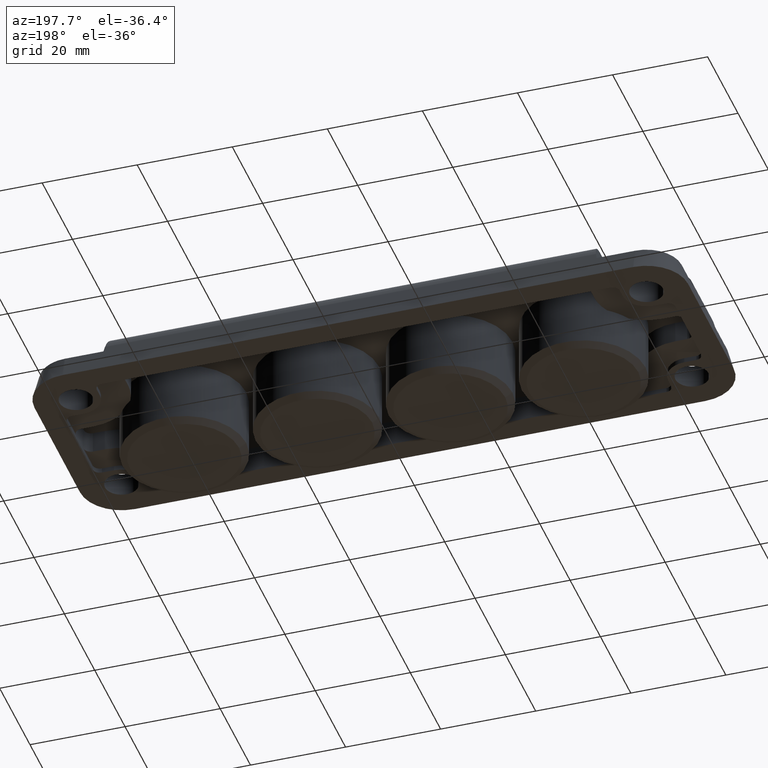
[diagram: clean part render]
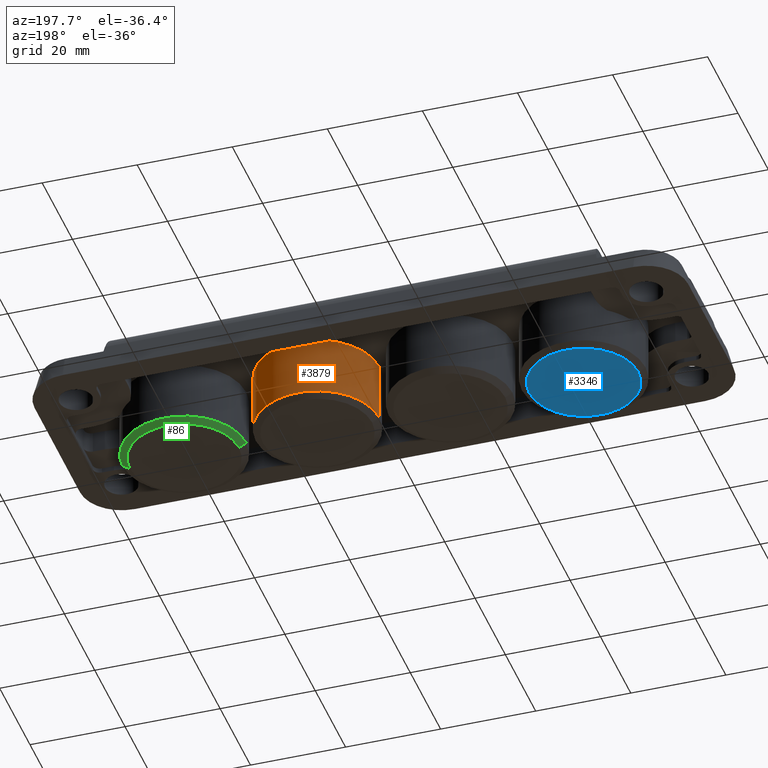
[diagram: same view with three faces highlighted in distinct colors, each labeled with its STEP entity id]
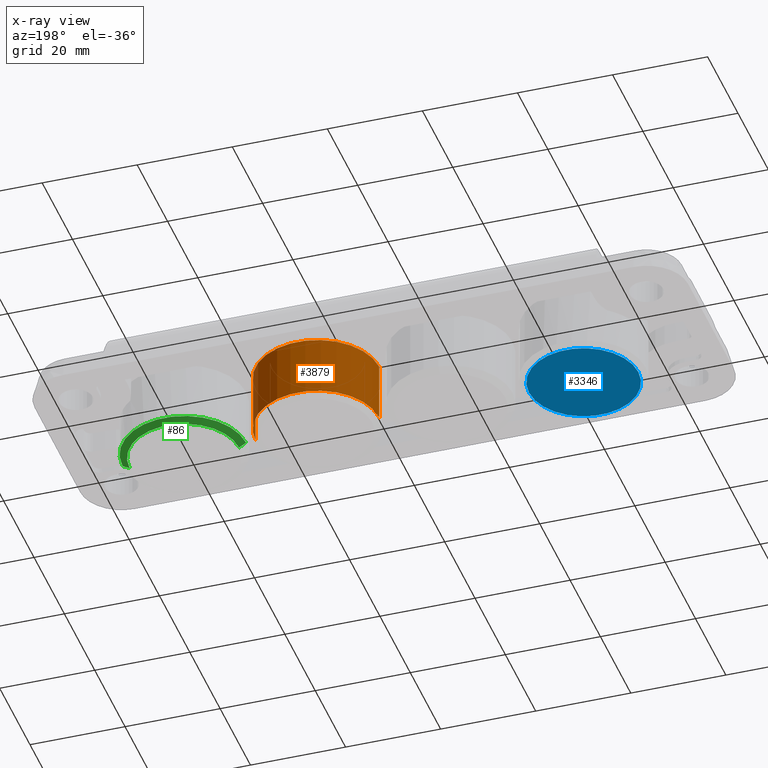
[diagram: x-ray of the same camera — body ghosted, the three highlighted faces saturated]
A machine part, auxiliary view with three faces highlighted in distinct colors.
The next image is the same camera in x-ray (body ghosted, the three faces saturated) — at least one of them is partly hidden behind the body in this view.
Their STEP definitions:

[orange] entity #3879 — the highlighted cylindrical surface (partial cylindrical patch) has radius 13 mm, axis along (0, 0, 1).
#29 = VECTOR ( 'NONE', #4028, 1000.000000000000000 ) ;
#80 = CIRCLE ( 'NONE', #1353, 13.00000000000000200 ) ;
#144 = CYLINDRICAL_SURFACE ( 'NONE', #4053, 13.00000000000000200 ) ;
#156 = CARTESIAN_POINT ( 'NONE',  ( 14.00000000000000200, 0.0000000000000000000, -62.76955262170047700 ) ) ;
#258 = CARTESIAN_POINT ( 'NONE',  ( 27.00000000000000400, 0.0000000000000000000, 5.500000000000000000 ) ) ;
#481 = DIRECTION ( 'NONE',  ( 0.0000000000000000000, 0.0000000000000000000, 1.000000000000000000 ) ) ;
#570 = DIRECTION ( 'NONE',  ( 1.000000000000000000, 0.0000000000000000000, 0.0000000000000000000 ) ) ;
#576 = VERTEX_POINT ( 'NONE', #3723 ) ;
#969 = LINE ( 'NONE', #1376, #1712 ) ;
#1353 = AXIS2_PLACEMENT_3D ( 'NONE', #2127, #2149, #570 ) ;
#1376 = CARTESIAN_POINT ( 'NONE',  ( 1.000000000000000900, 1.592040838891559300E-015, -62.76955262170047700 ) ) ;
#1712 = VECTOR ( 'NONE', #481, 1000.000000000000000 ) ;
#1723 = CARTESIAN_POINT ( 'NONE',  ( 27.00000000000000400, 0.0000000000000000000, -7.133974596215564300 ) ) ;
#1761 = ORIENTED_EDGE ( 'NONE', *, *, #3301, .F. ) ;
#1851 = ORIENTED_EDGE ( 'NONE', *, *, #2765, .T. ) ;
#1854 = VERTEX_POINT ( 'NONE', #258 ) ;
#2014 = CIRCLE ( 'NONE', #2352, 13.00000000000000200 ) ;
#2032 = CARTESIAN_POINT ( 'NONE',  ( 14.00000000000000200, 0.0000000000000000000, -7.133974596215564300 ) ) ;
#2111 = CARTESIAN_POINT ( 'NONE',  ( 1.000000000000000900, 1.592040838891559300E-015, -7.133974596215564300 ) ) ;
#2127 = CARTESIAN_POINT ( 'NONE',  ( 14.00000000000000200, 0.0000000000000000000, 5.500000000000000000 ) ) ;
#2140 = VERTEX_POINT ( 'NONE', #1723 ) ;
#2149 = DIRECTION ( 'NONE',  ( 0.0000000000000000000, 0.0000000000000000000, 1.000000000000000000 ) ) ;
#2154 = FACE_OUTER_BOUND ( 'NONE', #3016, .T. ) ;
#2309 = DIRECTION ( 'NONE',  ( -1.000000000000000000, 0.0000000000000000000, 0.0000000000000000000 ) ) ;
#2333 = DIRECTION ( 'NONE',  ( 1.000000000000000000, 0.0000000000000000000, 0.0000000000000000000 ) ) ;
#2352 = AXIS2_PLACEMENT_3D ( 'NONE', #2032, #2937, #2309 ) ;
#2474 = ORIENTED_EDGE ( 'NONE', *, *, #3400, .F. ) ;
#2494 = VERTEX_POINT ( 'NONE', #2111 ) ;
#2519 = CARTESIAN_POINT ( 'NONE',  ( 27.00000000000000400, 0.0000000000000000000, -62.76955262170047700 ) ) ;
#2765 = EDGE_CURVE ( 'NONE', #2140, #2494, #2014, .T. ) ;
#2796 = EDGE_CURVE ( 'NONE', #2494, #576, #969, .T. ) ;
#2921 = ORIENTED_EDGE ( 'NONE', *, *, #2796, .T. ) ;
#2937 = DIRECTION ( 'NONE',  ( -0.0000000000000000000, -0.0000000000000000000, 1.000000000000000000 ) ) ;
#3016 = EDGE_LOOP ( 'NONE', ( #1851, #2921, #1761, #2474 ) ) ;
#3167 = LINE ( 'NONE', #2519, #29 ) ;
#3301 = EDGE_CURVE ( 'NONE', #1854, #576, #80, .T. ) ;
#3400 = EDGE_CURVE ( 'NONE', #2140, #1854, #3167, .T. ) ;
#3625 = DIRECTION ( 'NONE',  ( 0.0000000000000000000, 0.0000000000000000000, 1.000000000000000000 ) ) ;
#3723 = CARTESIAN_POINT ( 'NONE',  ( 1.000000000000000900, 1.592040838891559300E-015, 5.500000000000000000 ) ) ;
#3879 = ADVANCED_FACE ( 'NONE', ( #2154 ), #144, .T. ) ;
#4028 = DIRECTION ( 'NONE',  ( 0.0000000000000000000, 0.0000000000000000000, 1.000000000000000000 ) ) ;
#4053 = AXIS2_PLACEMENT_3D ( 'NONE', #156, #3625, #2333 ) ;

[blue] entity #3346 — the highlighted planar face has unit normal (-0, 0, -1).
#106 = AXIS2_PLACEMENT_3D ( 'NONE', #2701, #499, #1129 ) ;
#165 = AXIS2_PLACEMENT_3D ( 'NONE', #2724, #3341, #2102 ) ;
#391 = ORIENTED_EDGE ( 'NONE', *, *, #2359, .T. ) ;
#499 = DIRECTION ( 'NONE',  ( -0.0000000000000000000, -0.0000000000000000000, -1.000000000000000000 ) ) ;
#1044 = CARTESIAN_POINT ( 'NONE',  ( -53.50000000000000000, 1.500192328955507700E-015, -7.999999999999998200 ) ) ;
#1129 = DIRECTION ( 'NONE',  ( -1.000000000000000000, 0.0000000000000000000, 0.0000000000000000000 ) ) ;
#1441 = VERTEX_POINT ( 'NONE', #1044 ) ;
#1510 = FACE_OUTER_BOUND ( 'NONE', #2615, .T. ) ;
#1777 = AXIS2_PLACEMENT_3D ( 'NONE', #3645, #2757, #3703 ) ;
#1834 = PLANE ( 'NONE',  #1777 ) ;
#2102 = DIRECTION ( 'NONE',  ( -1.000000000000000000, 0.0000000000000000000, 0.0000000000000000000 ) ) ;
#2307 = EDGE_CURVE ( 'NONE', #1441, #3957, #3802, .T. ) ;
#2359 = EDGE_CURVE ( 'NONE', #3957, #1441, #3366, .T. ) ;
#2615 = EDGE_LOOP ( 'NONE', ( #391, #2735 ) ) ;
#2701 = CARTESIAN_POINT ( 'NONE',  ( -42.00000000000000000, 0.0000000000000000000, -7.999999999999998200 ) ) ;
#2724 = CARTESIAN_POINT ( 'NONE',  ( -42.00000000000000000, 0.0000000000000000000, -7.999999999999998200 ) ) ;
#2735 = ORIENTED_EDGE ( 'NONE', *, *, #2307, .T. ) ;
#2757 = DIRECTION ( 'NONE',  ( -0.0000000000000000000, 0.0000000000000000000, -1.000000000000000000 ) ) ;
#3024 = CARTESIAN_POINT ( 'NONE',  ( -30.50000000000000700, 0.0000000000000000000, -7.999999999999998200 ) ) ;
#3341 = DIRECTION ( 'NONE',  ( -0.0000000000000000000, -0.0000000000000000000, -1.000000000000000000 ) ) ;
#3346 = ADVANCED_FACE ( 'NONE', ( #1510 ), #1834, .T. ) ;
#3366 = CIRCLE ( 'NONE', #106, 11.49999999999999600 ) ;
#3645 = CARTESIAN_POINT ( 'NONE',  ( -60.00000000000000700, 14.99999999999999300, -7.999999999999998200 ) ) ;
#3703 = DIRECTION ( 'NONE',  ( -1.000000000000000000, 0.0000000000000000000, 0.0000000000000000000 ) ) ;
#3802 = CIRCLE ( 'NONE', #165, 11.49999999999999600 ) ;
#3957 = VERTEX_POINT ( 'NONE', #3024 ) ;

[green] entity #86 — the highlighted conical surface has half-angle 60 deg.
#86 = ADVANCED_FACE ( 'NONE', ( #1841 ), #3545, .T. ) ;
#334 = VECTOR ( 'NONE', #418, 1000.000000000000000 ) ;
#397 = EDGE_CURVE ( 'NONE', #2781, #3061, #3887, .T. ) ;
#418 = DIRECTION ( 'NONE',  ( 0.8660254037844390400, 0.0000000000000000000, 0.4999999999999993300 ) ) ;
#445 = CARTESIAN_POINT ( 'NONE',  ( 30.49999999999999600, 1.500192328955508100E-015, -7.999999999999998200 ) ) ;
#524 = ORIENTED_EDGE ( 'NONE', *, *, #397, .T. ) ;
#861 = EDGE_LOOP ( 'NONE', ( #3994, #524, #1940, #1752 ) ) ;
#878 = DIRECTION ( 'NONE',  ( -1.000000000000000000, 0.0000000000000000000, 0.0000000000000000000 ) ) ;
#895 = AXIS2_PLACEMENT_3D ( 'NONE', #3923, #2637, #2314 ) ;
#1131 = EDGE_CURVE ( 'NONE', #2781, #1204, #1783, .T. ) ;
#1204 = VERTEX_POINT ( 'NONE', #3153 ) ;
#1752 = ORIENTED_EDGE ( 'NONE', *, *, #2892, .F. ) ;
#1783 = CIRCLE ( 'NONE', #3235, 11.50000000000000700 ) ;
#1841 = FACE_OUTER_BOUND ( 'NONE', #861, .T. ) ;
#1901 = CIRCLE ( 'NONE', #895, 13.00000000000000200 ) ;
#1924 = CARTESIAN_POINT ( 'NONE',  ( 55.00000000000000700, 0.0000000000000000000, -7.133974596215564300 ) ) ;
#1940 = ORIENTED_EDGE ( 'NONE', *, *, #2107, .F. ) ;
#2100 = CARTESIAN_POINT ( 'NONE',  ( 42.00000000000000000, 0.0000000000000000000, -7.999999999999998200 ) ) ;
#2107 = EDGE_CURVE ( 'NONE', #2971, #3061, #1901, .T. ) ;
#2314 = DIRECTION ( 'NONE',  ( -1.000000000000000000, 0.0000000000000000000, 0.0000000000000000000 ) ) ;
#2411 = DIRECTION ( 'NONE',  ( -0.0000000000000000000, -0.0000000000000000000, -1.000000000000000000 ) ) ;
#2462 = DIRECTION ( 'NONE',  ( 1.000000000000000000, 0.0000000000000000000, 0.0000000000000000000 ) ) ;
#2556 = VECTOR ( 'NONE', #2694, 1000.000000000000000 ) ;
#2637 = DIRECTION ( 'NONE',  ( -0.0000000000000000000, -0.0000000000000000000, 1.000000000000000000 ) ) ;
#2694 = DIRECTION ( 'NONE',  ( -0.8660254037844390400, 1.060575238724907400E-016, 0.4999999999999993300 ) ) ;
#2781 = VERTEX_POINT ( 'NONE', #445 ) ;
#2892 = EDGE_CURVE ( 'NONE', #1204, #2971, #3756, .T. ) ;
#2949 = CARTESIAN_POINT ( 'NONE',  ( 29.00000000000000000, 1.592040838891559300E-015, -7.133974596215564300 ) ) ;
#2971 = VERTEX_POINT ( 'NONE', #1924 ) ;
#3061 = VERTEX_POINT ( 'NONE', #2949 ) ;
#3153 = CARTESIAN_POINT ( 'NONE',  ( 53.50000000000000700, 0.0000000000000000000, -7.999999999999998200 ) ) ;
#3235 = AXIS2_PLACEMENT_3D ( 'NONE', #2100, #2411, #878 ) ;
#3289 = AXIS2_PLACEMENT_3D ( 'NONE', #3628, #3930, #2462 ) ;
#3545 = CONICAL_SURFACE ( 'NONE', #3289, 13.00000000000000500, 1.047197551196598500 ) ;
#3587 = CARTESIAN_POINT ( 'NONE',  ( 55.00000000000000700, 0.0000000000000000000, -7.133974596215564300 ) ) ;
#3628 = CARTESIAN_POINT ( 'NONE',  ( 42.00000000000000000, 0.0000000000000000000, -7.133974596215564300 ) ) ;
#3756 = LINE ( 'NONE', #3587, #334 ) ;
#3887 = LINE ( 'NONE', #3890, #2556 ) ;
#3890 = CARTESIAN_POINT ( 'NONE',  ( 29.00000000000000000, 1.592040838891559300E-015, -7.133974596215564300 ) ) ;
#3923 = CARTESIAN_POINT ( 'NONE',  ( 42.00000000000000000, 0.0000000000000000000, -7.133974596215564300 ) ) ;
#3930 = DIRECTION ( 'NONE',  ( -0.0000000000000000000, -0.0000000000000000000, 1.000000000000000000 ) ) ;
#3994 = ORIENTED_EDGE ( 'NONE', *, *, #1131, .F. ) ;